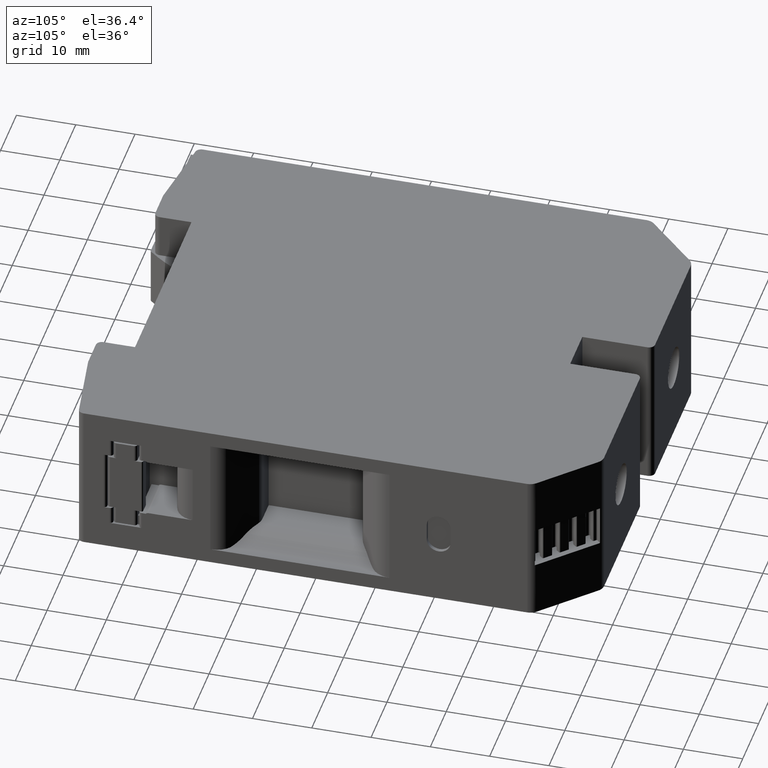
[diagram: clean part render]
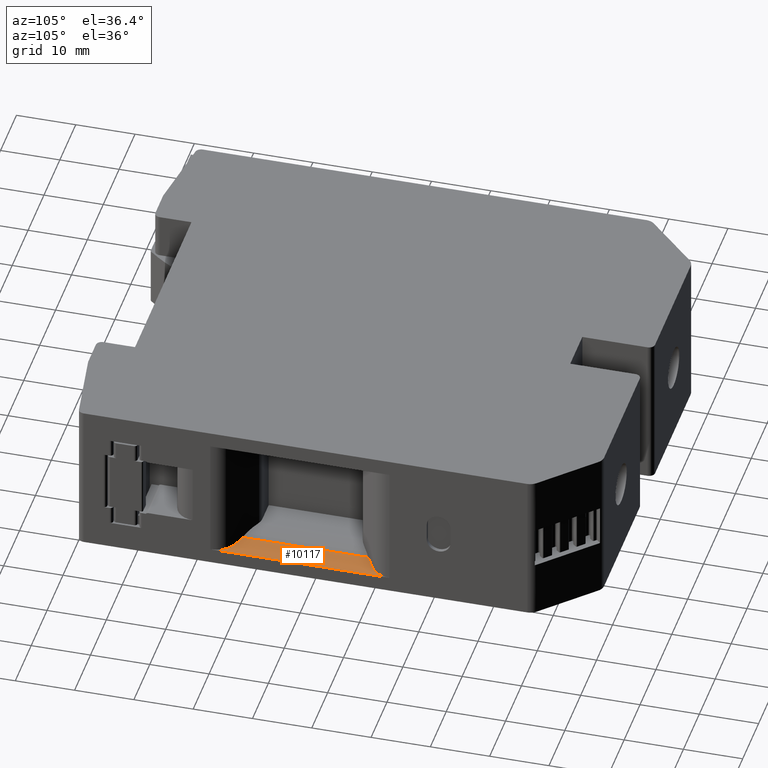
[diagram: same view with one face highlighted and labeled with its STEP entity id]
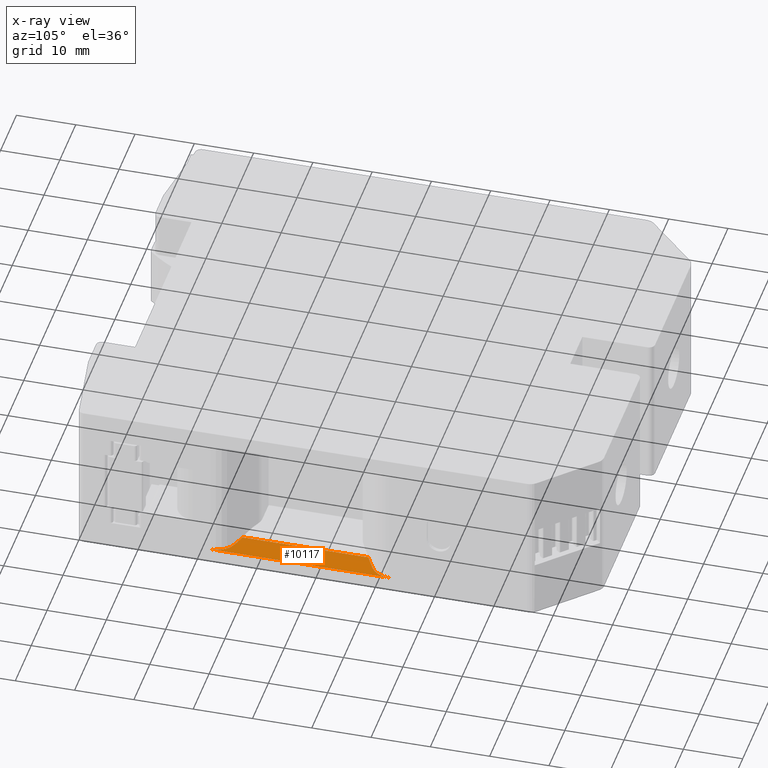
[diagram: x-ray of the same camera — body ghosted, the highlighted face saturated]
A machine part, auxiliary view. The second image highlights one B-rep face of the part: STEP entity #10117.
The next image is the same camera in x-ray: the body ghosted, the highlighted face saturated — about 0% of this face is hidden behind the body in this view.
In plain terms, the highlighted cylindrical surface (edge-blend (fillet) strip) has radius 5 mm, axis along (0, 1, 0).
Its self-contained STEP definition (entity closure, byte-faithful):
#1837 = VECTOR ( 'NONE', #24105, 1000.000000000000000 ) ;
#3801 = CARTESIAN_POINT ( 'NONE',  ( 42.63494894020286800, -6.876322574252498900, -21.65720986830159900 ) ) ;
#3818 = CARTESIAN_POINT ( 'NONE',  ( 42.44399051596771200, -8.139299501429963600, -21.68052740150432100 ) ) ;
#3821 = CARTESIAN_POINT ( 'NONE',  ( 41.85051272703285700, -9.276876859315550000, -21.70802815352089300 ) ) ;
#3822 = CARTESIAN_POINT ( 'NONE',  ( 42.33059805663100400, -8.439678188697479700, -21.69209598111101700 ) ) ;
#3823 = CARTESIAN_POINT ( 'NONE',  ( 42.03587101824275900, -9.006024945030480600, -21.70592843071964900 ) ) ;
#3827 = CARTESIAN_POINT ( 'NONE',  ( 42.59708160206477600, -7.513043246343483100, -21.66290713023155600 ) ) ;
#3838 = CARTESIAN_POINT ( 'NONE',  ( 42.63494894020633600, -7.196412299085182900, -21.65720986830105200 ) ) ;
#4021 = CARTESIAN_POINT ( 'NONE',  ( 41.19077499847446000, -9.969812256966877200, -21.65392574337659300 ) ) ;
#4024 = CARTESIAN_POINT ( 'NONE',  ( 41.42772012727851200, -9.757804907942343700, -21.68178908919642100 ) ) ;
#4035 = CARTESIAN_POINT ( 'NONE',  ( 40.92925468560848400, -10.15293075143055800, -21.59945342854128100 ) ) ;
#5736 = EDGE_LOOP ( 'NONE', ( #11689, #11694, #11707, #11409, #11613, #11704 ) ) ;
#7163 =( BOUNDED_CURVE ( )  B_SPLINE_CURVE ( 3, ( #19282, #19298, #19287, #19288 ),
 .UNSPECIFIED., .F., .T. ) 
 B_SPLINE_CURVE_WITH_KNOTS ( ( 4, 4 ),
 ( 4.917743750485611200, 5.300391583932238000 ),
 .UNSPECIFIED. ) 
 CURVE ( )  GEOMETRIC_REPRESENTATION_ITEM ( )  RATIONAL_B_SPLINE_CURVE ( ( 1.000000000000000000, 0.9878355607562492300, 0.9878355607562492300, 1.000000000000000000 ) ) 
 REPRESENTATION_ITEM ( '' )  );
#7171 =( BOUNDED_CURVE ( )  B_SPLINE_CURVE ( 3, ( #19483, #19439, #19448, #19450 ),
 .UNSPECIFIED., .F., .T. ) 
 B_SPLINE_CURVE_WITH_KNOTS ( ( 4, 4 ),
 ( 4.124386376837156500, 4.507034210283688200 ),
 .UNSPECIFIED. ) 
 CURVE ( )  GEOMETRIC_REPRESENTATION_ITEM ( )  RATIONAL_B_SPLINE_CURVE ( ( 1.000000000000000000, 0.9878355607562554500, 0.9878355607562554500, 1.000000000000000000 ) ) 
 REPRESENTATION_ITEM ( '' )  );
#8080 = EDGE_CURVE ( 'NONE', #20423, #20474, #21093, .T. ) ;
#8095 = EDGE_CURVE ( 'NONE', #20484, #20439, #21034, .T. ) ;
#8691 = EDGE_CURVE ( 'NONE', #20423, #20439, #24063, .T. ) ;
#9075 = DIRECTION ( 'NONE',  ( 7.492368868001600100E-014, 1.000000000000000000, 5.533992542840139800E-016 ) ) ;
#9086 = FACE_OUTER_BOUND ( 'NONE', #5736, .T. ) ;
#9088 = DIRECTION ( 'NONE',  ( 2.081668171172168200E-014, -5.204170427930420300E-016, 1.000000000000000000 ) ) ;
#9094 = CYLINDRICAL_SURFACE ( 'NONE', #16468, 5.000000000000000900 ) ;
#9116 = CARTESIAN_POINT ( 'NONE',  ( 41.94882712886546700, 3.450018717512791400, -16.70450991171158600 ) ) ;
#10117 = ADVANCED_FACE ( 'NONE', ( #9086 ), #9094, .F. ) ;
#11409 = ORIENTED_EDGE ( 'NONE', *, *, #8080, .F. ) ;
#11422 = EDGE_CURVE ( 'NONE', #20596, #20547, #19155, .T. ) ;
#11595 = EDGE_CURVE ( 'NONE', #20474, #20596, #7163, .T. ) ;
#11613 = ORIENTED_EDGE ( 'NONE', *, *, #8691, .T. ) ;
#11689 = ORIENTED_EDGE ( 'NONE', *, *, #11775, .F. ) ;
#11694 = ORIENTED_EDGE ( 'NONE', *, *, #11422, .F. ) ;
#11704 = ORIENTED_EDGE ( 'NONE', *, *, #8095, .F. ) ;
#11707 = ORIENTED_EDGE ( 'NONE', *, *, #11595, .F. ) ;
#11775 = EDGE_CURVE ( 'NONE', #20547, #20484, #7171, .T. ) ;
#16468 = AXIS2_PLACEMENT_3D ( 'NONE', #9116, #9075, #9088 ) ;
#16586 = VECTOR ( 'NONE', #19189, 1000.000000000000000 ) ;
#16762 = CARTESIAN_POINT ( 'NONE',  ( 39.17532614773647000, -32.61891782984599800, -20.86476138340077600 ) ) ;
#19155 = LINE ( 'NONE', #19216, #16586 ) ;
#19189 = DIRECTION ( 'NONE',  ( 7.492368868001600100E-014, 1.000000000000000000, 5.533992542840139800E-016 ) ) ;
#19216 = CARTESIAN_POINT ( 'NONE',  ( 39.17532614773847400, -10.49904736054265600, -20.86476138340077600 ) ) ;
#19282 = CARTESIAN_POINT ( 'NONE',  ( 40.92925468560698500, -33.84703181354397800, -21.59945342854128100 ) ) ;
#19287 = CARTESIAN_POINT ( 'NONE',  ( 39.70922642155489500, -32.99275882622600200, -21.22069489927984500 ) ) ;
#19288 = CARTESIAN_POINT ( 'NONE',  ( 39.17532614773647000, -32.61891782984599800, -20.86476138340077600 ) ) ;
#19298 = CARTESIAN_POINT ( 'NONE',  ( 40.30106869691216100, -33.40717124886241200, -21.46860797116066200 ) ) ;
#19439 = CARTESIAN_POINT ( 'NONE',  ( 39.70922642155670700, -11.00720373874825200, -21.22069489927978500 ) ) ;
#19448 = CARTESIAN_POINT ( 'NONE',  ( 40.30106869691386600, -10.59279131611204000, -21.46860797116054400 ) ) ;
#19450 = CARTESIAN_POINT ( 'NONE',  ( 40.92925468560848400, -10.15293075143055800, -21.59945342854128100 ) ) ;
#19483 = CARTESIAN_POINT ( 'NONE',  ( 39.17532614773847400, -11.38104473512820800, -20.86476138340077600 ) ) ;
#20107 = CARTESIAN_POINT ( 'NONE',  ( 42.59684254396169900, -36.48496149238283700, -21.66294539841188200 ) ) ;
#20113 = CARTESIAN_POINT ( 'NONE',  ( 42.63494894020331600, -37.12363999067791600, -21.65720986830118000 ) ) ;
#20114 = CARTESIAN_POINT ( 'NONE',  ( 42.44285404885483400, -35.85700277538516200, -21.68064735518096200 ) ) ;
#20119 = CARTESIAN_POINT ( 'NONE',  ( 42.63494894020085700, -36.80366800607477300, -21.65720986830152800 ) ) ;
#20120 = CARTESIAN_POINT ( 'NONE',  ( 42.32997030057860100, -35.55878277965892000, -21.69214878948611200 ) ) ;
#20128 = CARTESIAN_POINT ( 'NONE',  ( 40.92925468560698500, -33.84703181354397800, -21.59945342854128100 ) ) ;
#20133 = CARTESIAN_POINT ( 'NONE',  ( 41.85015779738499500, -34.72284245954711000, -21.70796897970367200 ) ) ;
#20135 = CARTESIAN_POINT ( 'NONE',  ( 41.42982875692972300, -34.24439641105178100, -21.68195694527984000 ) ) ;
#20147 = CARTESIAN_POINT ( 'NONE',  ( 42.03491724776615300, -34.99240174682726200, -21.70594972279208800 ) ) ;
#20148 = CARTESIAN_POINT ( 'NONE',  ( 41.19023844032170000, -34.02977460594583200, -21.65381398316878500 ) ) ;
#20423 = VERTEX_POINT ( 'NONE', #23923 ) ;
#20439 = VERTEX_POINT ( 'NONE', #23945 ) ;
#20474 = VERTEX_POINT ( 'NONE', #23978 ) ;
#20484 = VERTEX_POINT ( 'NONE', #23956 ) ;
#20547 = VERTEX_POINT ( 'NONE', #24046 ) ;
#20596 = VERTEX_POINT ( 'NONE', #16762 ) ;
#21034 = B_SPLINE_CURVE_WITH_KNOTS ( 'NONE', 3,
 ( #4035, #4021, #4024, #3821, #3823, #3822, #3818, #3827, #3838, #3801 ),
 .UNSPECIFIED., .F., .F.,
 ( 4, 2, 2, 2, 4 ),
 ( 0.0000000000000000000, 0.0009569332867153765700, 0.001913866573430753100, 0.002870799860146129900, 0.003827733146861506300 ),
 .UNSPECIFIED. ) ;
#21093 = B_SPLINE_CURVE_WITH_KNOTS ( 'NONE', 3,
 ( #20113, #20119, #20107, #20114, #20120, #20147, #20133, #20135, #20148, #20128 ),
 .UNSPECIFIED., .F., .F.,
 ( 4, 2, 2, 2, 4 ),
 ( 0.04072794367725294400, 0.04168354784172662000, 0.04263915200620030400, 0.04359475617067398700, 0.04455036033514766400 ),
 .UNSPECIFIED. ) ;
#23923 = CARTESIAN_POINT ( 'NONE',  ( 42.63494894020331600, -37.12363999067791600, -21.65720986830118000 ) ) ;
#23945 = CARTESIAN_POINT ( 'NONE',  ( 42.63494894020286800, -6.876322574252498900, -21.65720986830159900 ) ) ;
#23956 = CARTESIAN_POINT ( 'NONE',  ( 40.92925468560848400, -10.15293075143055800, -21.59945342854128100 ) ) ;
#23978 = CARTESIAN_POINT ( 'NONE',  ( 40.92925468560698500, -33.84703181354397800, -21.59945342854128100 ) ) ;
#24046 = CARTESIAN_POINT ( 'NONE',  ( 39.17532614773847400, -11.38104473512820800, -20.86476138340077600 ) ) ;
#24063 = LINE ( 'NONE', #24089, #1837 ) ;
#24089 = CARTESIAN_POINT ( 'NONE',  ( 42.63494894020318800, 3.450018717512794100, -21.65720986830159200 ) ) ;
#24105 = DIRECTION ( 'NONE',  ( 7.492368868001600100E-014, 1.000000000000000000, 5.533992542840139800E-016 ) ) ;